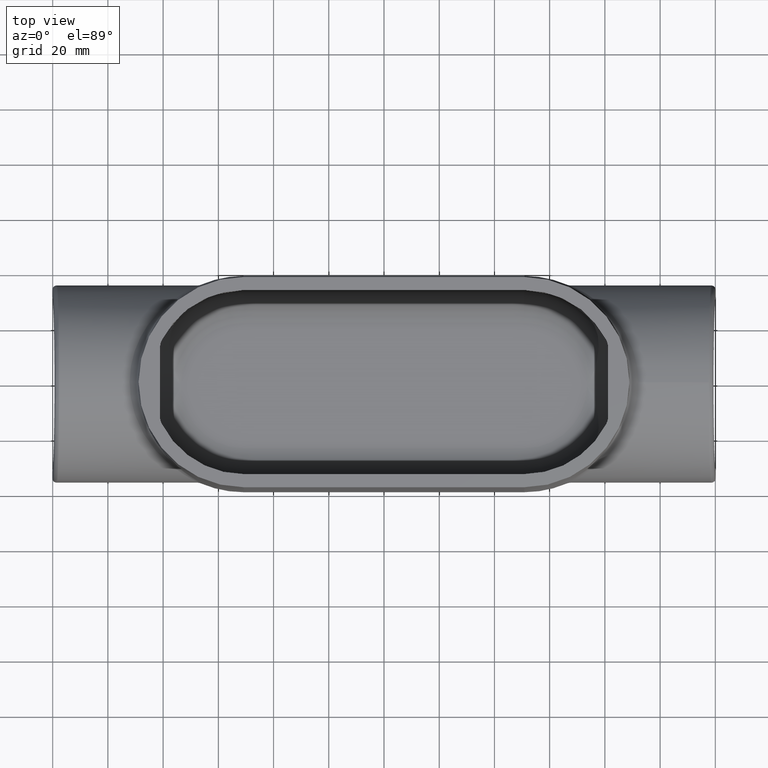
[diagram: clean part render]
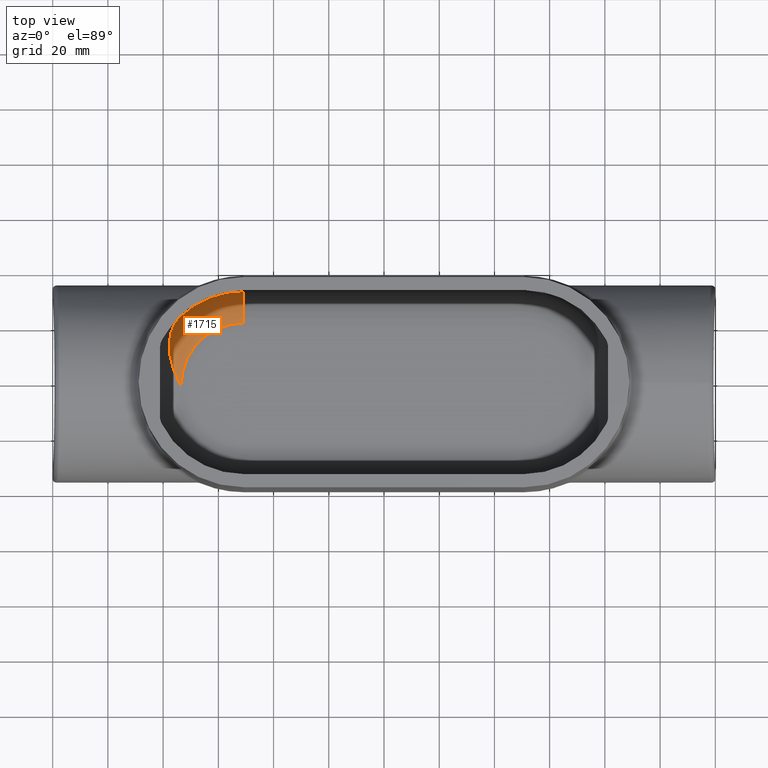
[diagram: same view with one face highlighted and labeled with its STEP entity id]
A machine part, top view. The second image highlights one B-rep face of the part: STEP entity #1715.
In plain terms, the highlighted toroidal blend (fillet) surface has major radius 22.7184 mm and minor (blend) radius 11.1125 mm.
Its self-contained STEP definition (entity closure, byte-faithful):
#140=TOROIDAL_SURFACE('',#1932,0.894425195870098,0.4375);
#209=FACE_OUTER_BOUND('',#312,.T.);
#312=EDGE_LOOP('',(#1476,#1477,#1478,#1479));
#547=B_SPLINE_CURVE_WITH_KNOTS('',3,(#4894,#4895,#4896,#4897,#4898,#4899,
#4900,#4901,#4902,#4903,#4904,#4905),.UNSPECIFIED.,.F.,.F.,(4,2,2,2,2,4),
(-10.1960939028953,-10.1939984399268,-9.49198381464713,-8.80235168558641,
-8.12016655616533,-7.49169663152816),.UNSPECIFIED.);
#640=CIRCLE('',#1928,1.3317752755469);
#643=CIRCLE('',#1933,0.894425195870098);
#644=CIRCLE('',#1934,0.4375);
#758=VERTEX_POINT('',#4878);
#759=VERTEX_POINT('',#4893);
#816=VERTEX_POINT('',#5363);
#818=VERTEX_POINT('',#5371);
#950=EDGE_CURVE('',#758,#759,#547,.T.);
#1050=EDGE_CURVE('',#816,#759,#640,.T.);
#1054=EDGE_CURVE('',#758,#818,#643,.F.);
#1055=EDGE_CURVE('',#816,#818,#644,.T.);
#1476=ORIENTED_EDGE('',*,*,#950,.F.);
#1477=ORIENTED_EDGE('',*,*,#1054,.T.);
#1478=ORIENTED_EDGE('',*,*,#1055,.F.);
#1479=ORIENTED_EDGE('',*,*,#1050,.T.);
#1715=ADVANCED_FACE('',(#209),#140,.F.);
#1928=AXIS2_PLACEMENT_3D('',#5364,#2360,#2361);
#1932=AXIS2_PLACEMENT_3D('',#5370,#2369,#2370);
#1933=AXIS2_PLACEMENT_3D('',#5372,#2371,#2372);
#1934=AXIS2_PLACEMENT_3D('',#5373,#2373,#2374);
#2360=DIRECTION('center_axis',(0.,0.,1.));
#2361=DIRECTION('ref_axis',(1.,0.,0.));
#2369=DIRECTION('center_axis',(0.,0.,1.));
#2370=DIRECTION('ref_axis',(1.,0.,0.));
#2371=DIRECTION('center_axis',(0.,0.,1.));
#2372=DIRECTION('ref_axis',(1.,0.,0.));
#2373=DIRECTION('center_axis',(-1.,0.,0.));
#2374=DIRECTION('ref_axis',(0.,0.,1.));
#4878=CARTESIAN_POINT('',(-2.8944251958701,4.16526553815866E-15,-1.3125));
#4893=CARTESIAN_POINT('',(-2.91474970260336,0.967914441541762,-0.886452414884694));
#4894=CARTESIAN_POINT('Ctrl Pts',(-2.8944251958701,2.50723988447004E-15,
-1.3125));
#4895=CARTESIAN_POINT('Ctrl Pts',(-2.89457447249152,0.000258554692693581,
-1.3125));
#4896=CARTESIAN_POINT('Ctrl Pts',(-2.89472366503204,0.000517157936662103,
-1.31249992359938));
#4897=CARTESIAN_POINT('Ctrl Pts',(-2.94482654608777,0.0874283896209537,
-1.31244855096518));
#4898=CARTESIAN_POINT('Ctrl Pts',(-2.98524852648297,0.179219684149158,-1.30372079518775));
#4899=CARTESIAN_POINT('Ctrl Pts',(-3.04249211720345,0.364716524764241,-1.26430592737141));
#4900=CARTESIAN_POINT('Ctrl Pts',(-3.0593562760124,0.457112575209205,-1.23422047821561));
#4901=CARTESIAN_POINT('Ctrl Pts',(-3.06504293183082,0.6342977810524,-1.15313151786615));
#4902=CARTESIAN_POINT('Ctrl Pts',(-3.05408705476712,0.716919853897017,-1.10332552110319));
#4903=CARTESIAN_POINT('Ctrl Pts',(-3.00253573504298,0.859458960816361,-0.995652428164585));
#4904=CARTESIAN_POINT('Ctrl Pts',(-2.96509537427297,0.918385607054879,-0.940532784420177));
#4905=CARTESIAN_POINT('Ctrl Pts',(-2.91474970260336,0.967914441541762,-0.886452414884694));
#5363=CARTESIAN_POINT('',(-2.,1.3317752755469,-0.886452414884695));
#5364=CARTESIAN_POINT('Origin',(-2.,0.,-0.886452414884695));
#5370=CARTESIAN_POINT('Origin',(-2.,0.,-0.875));
#5371=CARTESIAN_POINT('',(-2.,0.894425195870098,-1.3125));
#5372=CARTESIAN_POINT('Origin',(-2.,0.,-1.3125));
#5373=CARTESIAN_POINT('Origin',(-2.,0.894425195870098,-0.875));